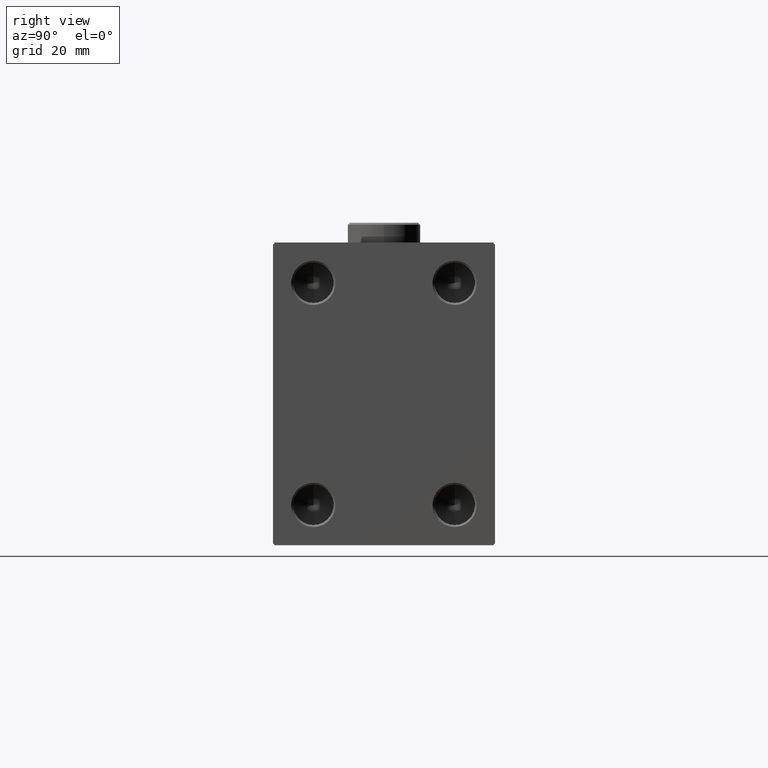
[diagram: clean part render]
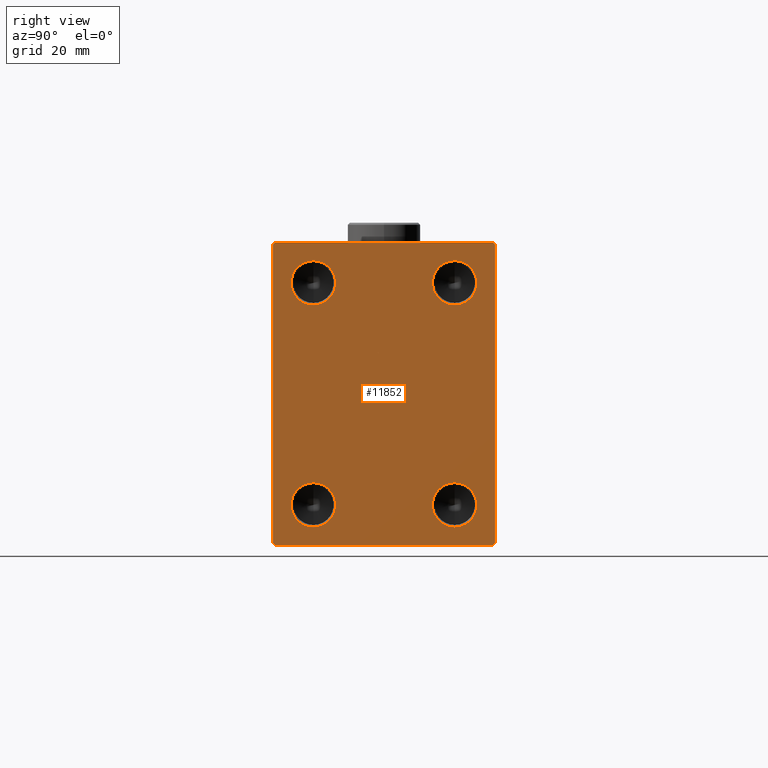
[diagram: same view with one face highlighted and labeled with its STEP entity id]
A machine part, right view. The second image highlights one B-rep face of the part: STEP entity #11852.
In plain terms, the highlighted planar face has unit normal (1, 0, 0).
Its self-contained STEP definition (entity closure, byte-faithful):
#188 = CARTESIAN_POINT ( 'NONE',  ( 80.00000000000000000, -27.49999999999999645, -37.50000000000000000 ) ) ;
#521 = DIRECTION ( 'NONE',  ( 1.000000000000000000, -0.000000000000000000, -0.000000000000000000 ) ) ;
#1177 = VERTEX_POINT ( 'NONE', #42523 ) ;
#1518 = DIRECTION ( 'NONE',  ( 1.000000000000000000, -0.000000000000000000, -0.000000000000000000 ) ) ;
#2363 = CARTESIAN_POINT ( 'NONE',  ( 80.00000000000000000, -17.50000000000000000, 27.50000000000000000 ) ) ;
#3746 = EDGE_CURVE ( 'NONE', #46647, #8330, #22792, .T. ) ;
#3856 = VERTEX_POINT ( 'NONE', #40195 ) ;
#3997 = EDGE_CURVE ( 'NONE', #42812, #1177, #30831, .T. ) ;
#4304 = CARTESIAN_POINT ( 'NONE',  ( 80.00000000000000000, -27.49999999999999645, 36.99999999999998579 ) ) ;
#4523 = VERTEX_POINT ( 'NONE', #16686 ) ;
#4641 = ORIENTED_EDGE ( 'NONE', *, *, #33351, .T. ) ;
#4660 = VECTOR ( 'NONE', #11703, 1000.000000000000114 ) ;
#4764 = DIRECTION ( 'NONE',  ( 0.000000000000000000, 0.000000000000000000, -1.000000000000000000 ) ) ;
#4877 = CIRCLE ( 'NONE', #28331, 5.499999999999991118 ) ;
#5018 = DIRECTION ( 'NONE',  ( 1.000000000000000000, 0.000000000000000000, 0.000000000000000000 ) ) ;
#5259 = ORIENTED_EDGE ( 'NONE', *, *, #31006, .F. ) ;
#5603 = LINE ( 'NONE', #32030, #44074 ) ;
#5766 = CARTESIAN_POINT ( 'NONE',  ( 80.00000000000000000, 17.50000000000000000, 22.00000000000000711 ) ) ;
#6443 = LINE ( 'NONE', #21855, #38657 ) ;
#6925 = DIRECTION ( 'NONE',  ( 0.000000000000000000, 0.000000000000000000, -1.000000000000000000 ) ) ;
#6938 = AXIS2_PLACEMENT_3D ( 'NONE', #42489, #5018, #4764 ) ;
#7308 = CIRCLE ( 'NONE', #15924, 5.499999999999994671 ) ;
#7668 = EDGE_LOOP ( 'NONE', ( #26091, #5259 ) ) ;
#7708 = CARTESIAN_POINT ( 'NONE',  ( 80.00000000000000000, -17.50000000000000000, -27.49999999999999645 ) ) ;
#7743 = LINE ( 'NONE', #188, #45650 ) ;
#8330 = VERTEX_POINT ( 'NONE', #42396 ) ;
#8510 = CARTESIAN_POINT ( 'NONE',  ( 80.00000000000000000, -32.24999999999999289, 32.24999999999999289 ) ) ;
#9266 = DIRECTION ( 'NONE',  ( 1.000000000000000000, -0.000000000000000000, -0.000000000000000000 ) ) ;
#9568 = DIRECTION ( 'NONE',  ( 0.000000000000000000, 0.000000000000000000, -1.000000000000000000 ) ) ;
#9634 = CIRCLE ( 'NONE', #29176, 5.499999999999994671 ) ;
#9671 = CIRCLE ( 'NONE', #44075, 5.499999999999994671 ) ;
#10908 = DIRECTION ( 'NONE',  ( 0.000000000000000000, 0.000000000000000000, -1.000000000000000000 ) ) ;
#11246 = DIRECTION ( 'NONE',  ( -0.000000000000000000, 0.7071067811865474617, -0.7071067811865474617 ) ) ;
#11331 = EDGE_CURVE ( 'NONE', #20958, #37587, #18728, .T. ) ;
#11501 = EDGE_LOOP ( 'NONE', ( #22364, #32175 ) ) ;
#11656 = CARTESIAN_POINT ( 'NONE',  ( 80.00000000000000000, -17.50000000000000000, 22.00000000000000711 ) ) ;
#11703 = DIRECTION ( 'NONE',  ( 0.000000000000000000, -0.7071067811865474617, -0.7071067811865474617 ) ) ;
#11828 = VECTOR ( 'NONE', #20494, 1000.000000000000114 ) ;
#11852 = ADVANCED_FACE ( 'NONE', ( #20179, #19946, #45675, #26808, #27538 ), #35127, .T. ) ;
#12396 = ORIENTED_EDGE ( 'NONE', *, *, #45261, .T. ) ;
#13392 = VECTOR ( 'NONE', #11246, 1000.000000000000114 ) ;
#13761 = VERTEX_POINT ( 'NONE', #4304 ) ;
#14728 = CARTESIAN_POINT ( 'NONE',  ( 80.00000000000000000, 17.50000000000000000, 33.00000000000000000 ) ) ;
#14769 = EDGE_LOOP ( 'NONE', ( #22842, #23361 ) ) ;
#14822 = DIRECTION ( 'NONE',  ( 1.000000000000000000, -0.000000000000000000, -0.000000000000000000 ) ) ;
#15924 = AXIS2_PLACEMENT_3D ( 'NONE', #2363, #17282, #25122 ) ;
#16114 = ORIENTED_EDGE ( 'NONE', *, *, #28982, .F. ) ;
#16340 = CARTESIAN_POINT ( 'NONE',  ( 80.00000000000000000, 32.24999999999999289, -32.24999999999999289 ) ) ;
#16618 = DIRECTION ( 'NONE',  ( 0.000000000000000000, 0.000000000000000000, -1.000000000000000000 ) ) ;
#16686 = CARTESIAN_POINT ( 'NONE',  ( 80.00000000000000000, 26.99999999999998934, -37.50000000000000000 ) ) ;
#17282 = DIRECTION ( 'NONE',  ( 1.000000000000000000, -0.000000000000000000, -0.000000000000000000 ) ) ;
#17487 = EDGE_LOOP ( 'NONE', ( #16114, #31315 ) ) ;
#18159 = CARTESIAN_POINT ( 'NONE',  ( 80.00000000000000000, -27.49999999999999645, -37.00000000000000000 ) ) ;
#18728 = LINE ( 'NONE', #26331, #48316 ) ;
#18899 = EDGE_CURVE ( 'NONE', #3856, #13761, #19532, .T. ) ;
#19053 = CIRCLE ( 'NONE', #30035, 5.499999999999994671 ) ;
#19111 = DIRECTION ( 'NONE',  ( 0.000000000000000000, 0.000000000000000000, -1.000000000000000000 ) ) ;
#19122 = CARTESIAN_POINT ( 'NONE',  ( 80.00000000000000000, 27.49999999999999645, 37.00000000000000000 ) ) ;
#19532 = LINE ( 'NONE', #8510, #4660 ) ;
#19946 = FACE_BOUND ( 'NONE', #14769, .T. ) ;
#20179 = FACE_BOUND ( 'NONE', #17487, .T. ) ;
#20494 = DIRECTION ( 'NONE',  ( -0.000000000000000000, 0.7071067811865474617, 0.7071067811865474617 ) ) ;
#20958 = VERTEX_POINT ( 'NONE', #42124 ) ;
#21038 = ORIENTED_EDGE ( 'NONE', *, *, #18899, .T. ) ;
#21403 = EDGE_CURVE ( 'NONE', #4523, #20958, #39619, .T. ) ;
#21855 = CARTESIAN_POINT ( 'NONE',  ( 80.00000000000000000, 27.49999999999999645, 37.50000000000000000 ) ) ;
#22364 = ORIENTED_EDGE ( 'NONE', *, *, #3746, .F. ) ;
#22792 = CIRCLE ( 'NONE', #40017, 5.499999999999991118 ) ;
#22842 = ORIENTED_EDGE ( 'NONE', *, *, #44747, .F. ) ;
#23361 = ORIENTED_EDGE ( 'NONE', *, *, #27871, .F. ) ;
#23507 = DIRECTION ( 'NONE',  ( 0.000000000000000000, 0.000000000000000000, -1.000000000000000000 ) ) ;
#23834 = EDGE_CURVE ( 'NONE', #8330, #46647, #4877, .T. ) ;
#25122 = DIRECTION ( 'NONE',  ( 0.000000000000000000, 0.000000000000000000, -1.000000000000000000 ) ) ;
#25324 = EDGE_CURVE ( 'NONE', #45373, #43206, #29936, .T. ) ;
#25646 = DIRECTION ( 'NONE',  ( 0.000000000000000000, 1.000000000000000000, 0.000000000000000000 ) ) ;
#25729 = VERTEX_POINT ( 'NONE', #30217 ) ;
#25762 = DIRECTION ( 'NONE',  ( 0.000000000000000000, -1.000000000000000000, -2.523234146875355998E-16 ) ) ;
#26025 = CARTESIAN_POINT ( 'NONE',  ( 80.00000000000000000, -17.50000000000000000, -22.00000000000000355 ) ) ;
#26091 = ORIENTED_EDGE ( 'NONE', *, *, #25324, .F. ) ;
#26331 = CARTESIAN_POINT ( 'NONE',  ( 80.00000000000000000, 27.50000000000000355, -37.50000000000000000 ) ) ;
#26808 = FACE_BOUND ( 'NONE', #7668, .T. ) ;
#27417 = EDGE_CURVE ( 'NONE', #42346, #31752, #9671, .T. ) ;
#27538 = FACE_OUTER_BOUND ( 'NONE', #48320, .T. ) ;
#27871 = EDGE_CURVE ( 'NONE', #39134, #41077, #7308, .T. ) ;
#27978 = ORIENTED_EDGE ( 'NONE', *, *, #3997, .T. ) ;
#28165 = CARTESIAN_POINT ( 'NONE',  ( 80.00000000000000000, -17.50000000000000000, 33.00000000000000000 ) ) ;
#28331 = AXIS2_PLACEMENT_3D ( 'NONE', #7708, #14822, #10908 ) ;
#28366 = AXIS2_PLACEMENT_3D ( 'NONE', #48261, #41415, #30151 ) ;
#28982 = EDGE_CURVE ( 'NONE', #31752, #42346, #19053, .T. ) ;
#29176 = AXIS2_PLACEMENT_3D ( 'NONE', #31560, #9266, #16618 ) ;
#29936 = CIRCLE ( 'NONE', #28366, 5.499999999999991118 ) ;
#29970 = VECTOR ( 'NONE', #23507, 1000.000000000000000 ) ;
#30035 = AXIS2_PLACEMENT_3D ( 'NONE', #44636, #36816, #6925 ) ;
#30141 = CARTESIAN_POINT ( 'NONE',  ( 80.00000000000000000, 17.50000000000000000, -27.49999999999999645 ) ) ;
#30151 = DIRECTION ( 'NONE',  ( 0.000000000000000000, 0.000000000000000000, -1.000000000000000000 ) ) ;
#30217 = CARTESIAN_POINT ( 'NONE',  ( 80.00000000000000000, 26.99999999999999645, 37.50000000000000000 ) ) ;
#30586 = CARTESIAN_POINT ( 'NONE',  ( 80.00000000000000000, -32.24999999999999289, -32.24999999999999289 ) ) ;
#30619 = CARTESIAN_POINT ( 'NONE',  ( 80.00000000000000000, -27.49999999999999645, 37.49999999999998579 ) ) ;
#30831 = LINE ( 'NONE', #30586, #13392 ) ;
#31006 = EDGE_CURVE ( 'NONE', #43206, #45373, #43300, .T. ) ;
#31019 = EDGE_CURVE ( 'NONE', #13761, #42812, #35264, .T. ) ;
#31315 = ORIENTED_EDGE ( 'NONE', *, *, #27417, .F. ) ;
#31515 = ORIENTED_EDGE ( 'NONE', *, *, #21403, .T. ) ;
#31560 = CARTESIAN_POINT ( 'NONE',  ( 80.00000000000000000, -17.50000000000000000, 27.50000000000000000 ) ) ;
#31564 = DIRECTION ( 'NONE',  ( 1.000000000000000000, -0.000000000000000000, -0.000000000000000000 ) ) ;
#31752 = VERTEX_POINT ( 'NONE', #14728 ) ;
#32030 = CARTESIAN_POINT ( 'NONE',  ( 80.00000000000000000, 32.24999999999999289, 32.24999999999999289 ) ) ;
#32175 = ORIENTED_EDGE ( 'NONE', *, *, #23834, .F. ) ;
#33235 = CARTESIAN_POINT ( 'NONE',  ( 80.00000000000000000, 17.50000000000000000, -22.00000000000000355 ) ) ;
#33245 = ORIENTED_EDGE ( 'NONE', *, *, #45390, .T. ) ;
#33351 = EDGE_CURVE ( 'NONE', #25729, #3856, #6443, .T. ) ;
#35127 = PLANE ( 'NONE',  #6938 ) ;
#35264 = LINE ( 'NONE', #30619, #29970 ) ;
#35465 = AXIS2_PLACEMENT_3D ( 'NONE', #30141, #521, #19111 ) ;
#36816 = DIRECTION ( 'NONE',  ( 1.000000000000000000, -0.000000000000000000, -0.000000000000000000 ) ) ;
#37587 = VERTEX_POINT ( 'NONE', #19122 ) ;
#38657 = VECTOR ( 'NONE', #25762, 1000.000000000000000 ) ;
#38947 = ORIENTED_EDGE ( 'NONE', *, *, #11331, .T. ) ;
#39134 = VERTEX_POINT ( 'NONE', #11656 ) ;
#39577 = CARTESIAN_POINT ( 'NONE',  ( 80.00000000000000000, 17.50000000000000000, -32.99999999999998579 ) ) ;
#39619 = LINE ( 'NONE', #16340, #11828 ) ;
#40017 = AXIS2_PLACEMENT_3D ( 'NONE', #43371, #1518, #9568 ) ;
#40195 = CARTESIAN_POINT ( 'NONE',  ( 80.00000000000000000, -26.99999999999999645, 37.49999999999998579 ) ) ;
#41077 = VERTEX_POINT ( 'NONE', #28165 ) ;
#41415 = DIRECTION ( 'NONE',  ( 1.000000000000000000, -0.000000000000000000, -0.000000000000000000 ) ) ;
#42124 = CARTESIAN_POINT ( 'NONE',  ( 80.00000000000000000, 27.50000000000000355, -36.99999999999998579 ) ) ;
#42346 = VERTEX_POINT ( 'NONE', #5766 ) ;
#42396 = CARTESIAN_POINT ( 'NONE',  ( 80.00000000000000000, -17.50000000000000000, -32.99999999999998579 ) ) ;
#42489 = CARTESIAN_POINT ( 'NONE',  ( 80.00000000000000000, 0.000000000000000000, 0.000000000000000000 ) ) ;
#42523 = CARTESIAN_POINT ( 'NONE',  ( 80.00000000000000000, -26.99999999999999645, -37.50000000000000000 ) ) ;
#42606 = CARTESIAN_POINT ( 'NONE',  ( 80.00000000000000000, 17.50000000000000000, 27.50000000000000000 ) ) ;
#42812 = VERTEX_POINT ( 'NONE', #18159 ) ;
#43039 = ORIENTED_EDGE ( 'NONE', *, *, #31019, .T. ) ;
#43206 = VERTEX_POINT ( 'NONE', #39577 ) ;
#43300 = CIRCLE ( 'NONE', #35465, 5.499999999999991118 ) ;
#43371 = CARTESIAN_POINT ( 'NONE',  ( 80.00000000000000000, -17.50000000000000000, -27.49999999999999645 ) ) ;
#43791 = DIRECTION ( 'NONE',  ( -0.000000000000000000, -0.7071067811865474617, 0.7071067811865474617 ) ) ;
#44074 = VECTOR ( 'NONE', #43791, 1000.000000000000114 ) ;
#44075 = AXIS2_PLACEMENT_3D ( 'NONE', #42606, #31564, #46508 ) ;
#44467 = DIRECTION ( 'NONE',  ( 0.000000000000000000, -9.251858538542971581E-17, 1.000000000000000000 ) ) ;
#44636 = CARTESIAN_POINT ( 'NONE',  ( 80.00000000000000000, 17.50000000000000000, 27.50000000000000000 ) ) ;
#44747 = EDGE_CURVE ( 'NONE', #41077, #39134, #9634, .T. ) ;
#45261 = EDGE_CURVE ( 'NONE', #37587, #25729, #5603, .T. ) ;
#45373 = VERTEX_POINT ( 'NONE', #33235 ) ;
#45390 = EDGE_CURVE ( 'NONE', #1177, #4523, #7743, .T. ) ;
#45650 = VECTOR ( 'NONE', #25646, 1000.000000000000000 ) ;
#45675 = FACE_BOUND ( 'NONE', #11501, .T. ) ;
#46508 = DIRECTION ( 'NONE',  ( 0.000000000000000000, 0.000000000000000000, -1.000000000000000000 ) ) ;
#46647 = VERTEX_POINT ( 'NONE', #26025 ) ;
#48261 = CARTESIAN_POINT ( 'NONE',  ( 80.00000000000000000, 17.50000000000000000, -27.49999999999999645 ) ) ;
#48316 = VECTOR ( 'NONE', #44467, 1000.000000000000000 ) ;
#48320 = EDGE_LOOP ( 'NONE', ( #4641, #21038, #43039, #27978, #33245, #31515, #38947, #12396 ) ) ;